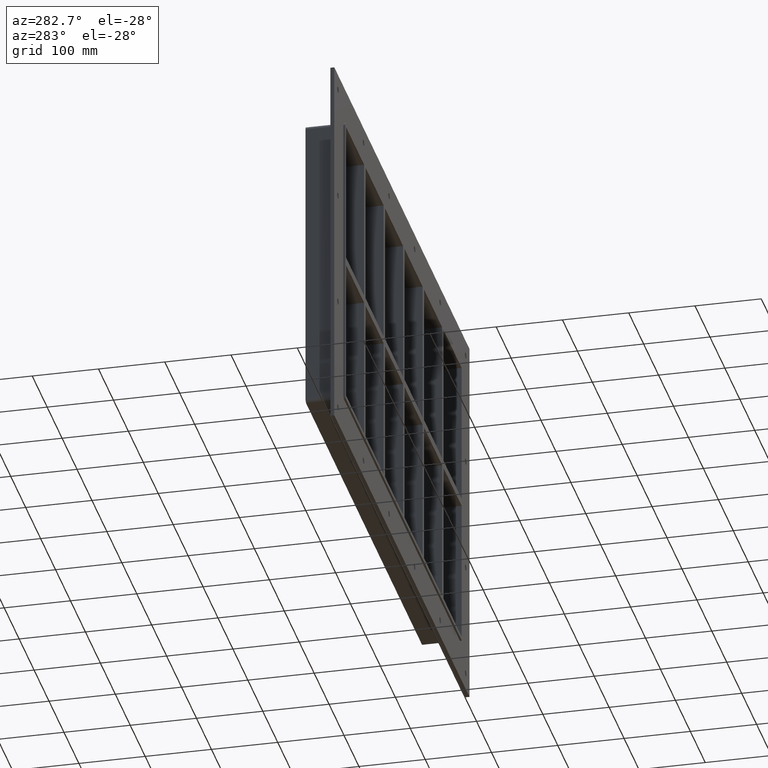
[diagram: clean part render]
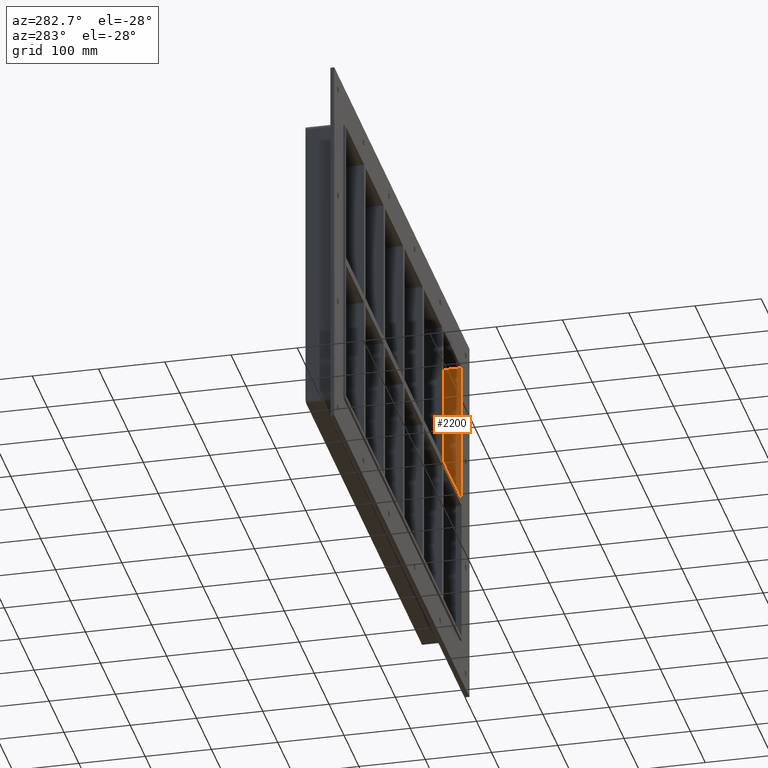
[diagram: same view with one face highlighted and labeled with its STEP entity id]
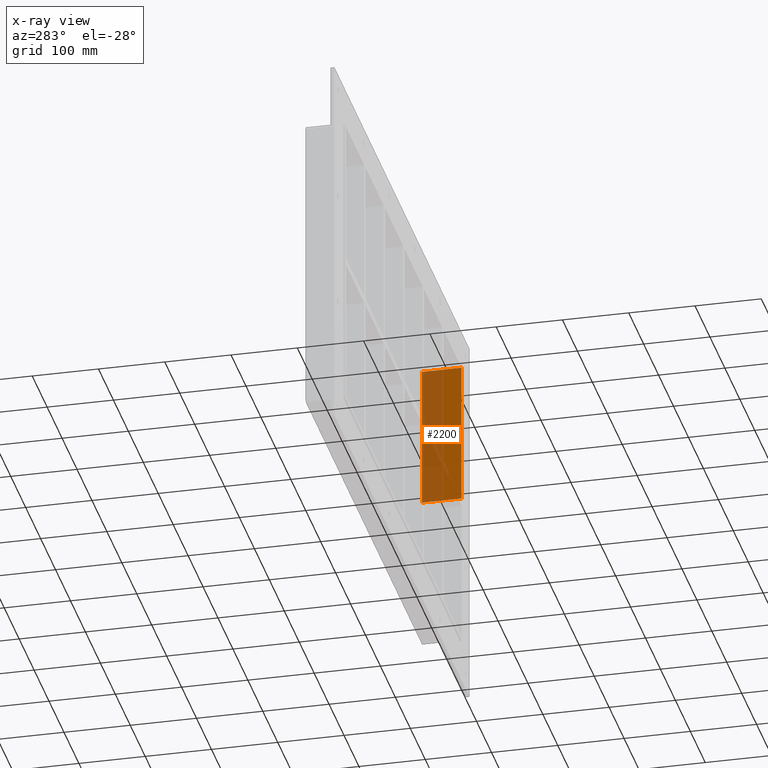
[diagram: x-ray of the same camera — body ghosted, the highlighted face saturated]
A machine part, auxiliary view. The second image highlights one B-rep face of the part: STEP entity #2200.
The next image is the same camera in x-ray: the body ghosted, the highlighted face saturated — about 56% of this face is hidden behind the body in this view.
In plain terms, the highlighted planar face has unit normal (1, 0, 0).
Its self-contained STEP definition (entity closure, byte-faithful):
#1484=CARTESIAN_POINT('',(386.50000000000011,-3.0,224.00000000000006));
#1485=VERTEX_POINT('',#1484);
#1492=CARTESIAN_POINT('',(386.50000000000011,-3.0,5.999999999999943));
#1493=VERTEX_POINT('',#1492);
#1494=CARTESIAN_POINT('',(386.50000000000011,-3.0,224.00000000000006));
#1495=DIRECTION('',(0.0,0.0,-1.0));
#1496=VECTOR('',#1495,218.00000000000011);
#1497=LINE('',#1494,#1496);
#1498=EDGE_CURVE('',#1485,#1493,#1497,.T.);
#1763=CARTESIAN_POINT('',(386.50000000000011,57.0,5.999999999999943));
#1764=VERTEX_POINT('',#1763);
#1771=CARTESIAN_POINT('',(386.50000000000011,57.0,224.00000000000006));
#1772=VERTEX_POINT('',#1771);
#1773=CARTESIAN_POINT('',(386.50000000000011,57.0,5.999999999999943));
#1774=DIRECTION('',(0.0,0.0,1.0));
#1775=VECTOR('',#1774,218.00000000000011);
#1776=LINE('',#1773,#1775);
#1777=EDGE_CURVE('',#1764,#1772,#1776,.T.);
#2012=CARTESIAN_POINT('',(386.50000000000011,57.000000000000007,5.999999999999943));
#2013=DIRECTION('',(0.0,-1.0,0.0));
#2014=VECTOR('',#2013,60.000000000000007);
#2015=LINE('',#2012,#2014);
#2016=EDGE_CURVE('',#1764,#1493,#2015,.T.);
#2070=CARTESIAN_POINT('',(386.50000000000011,-3.0,224.00000000000003));
#2071=DIRECTION('',(0.0,1.0,0.0));
#2072=VECTOR('',#2071,60.0);
#2073=LINE('',#2070,#2072);
#2074=EDGE_CURVE('',#1485,#1772,#2073,.T.);
#2189=CARTESIAN_POINT('',(386.50000000000011,0.0,224.00000000000003));
#2190=DIRECTION('',(1.0,0.0,0.0));
#2191=DIRECTION('',(0.0,0.0,-1.0));
#2192=AXIS2_PLACEMENT_3D('',#2189,#2190,#2191);
#2193=PLANE('',#2192);
#2194=ORIENTED_EDGE('',*,*,#2016,.T.);
#2195=ORIENTED_EDGE('',*,*,#1498,.F.);
#2196=ORIENTED_EDGE('',*,*,#2074,.T.);
#2197=ORIENTED_EDGE('',*,*,#1777,.F.);
#2198=EDGE_LOOP('',(#2194,#2195,#2196,#2197));
#2199=FACE_OUTER_BOUND('',#2198,.T.);
#2200=ADVANCED_FACE('',(#2199),#2193,.F.);